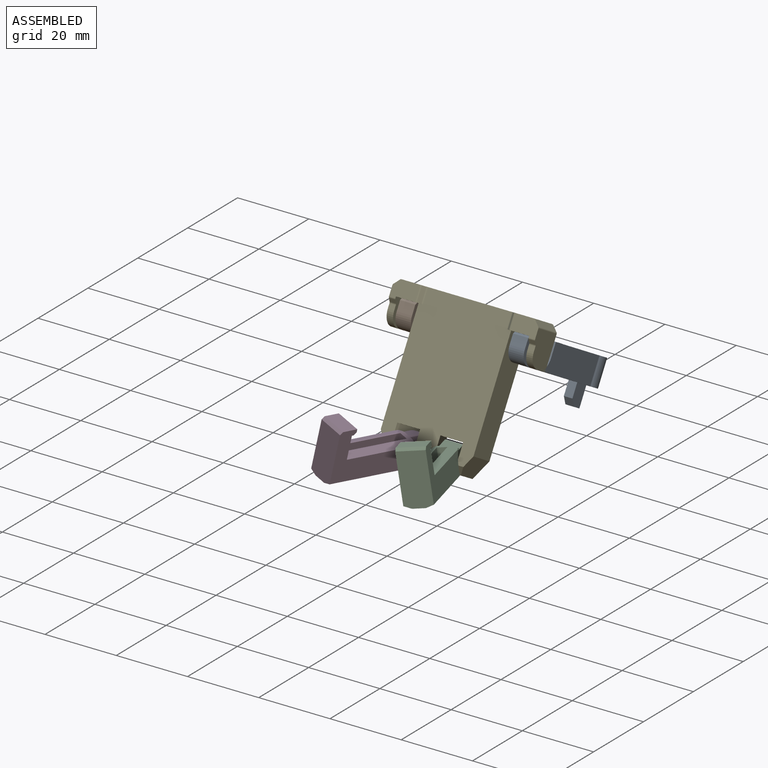
[diagram: assembled view]
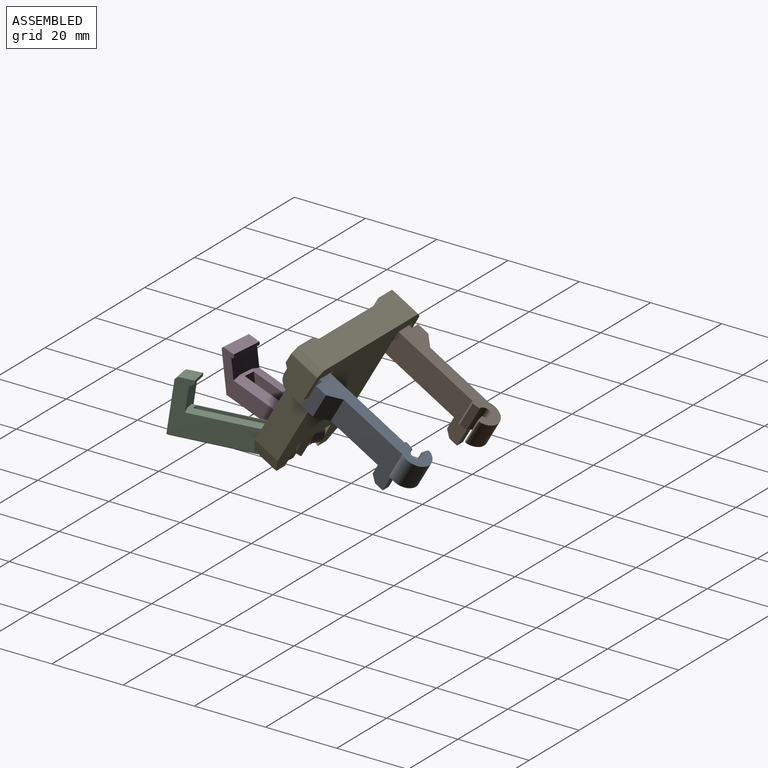
[diagram: assembled view, second angle]
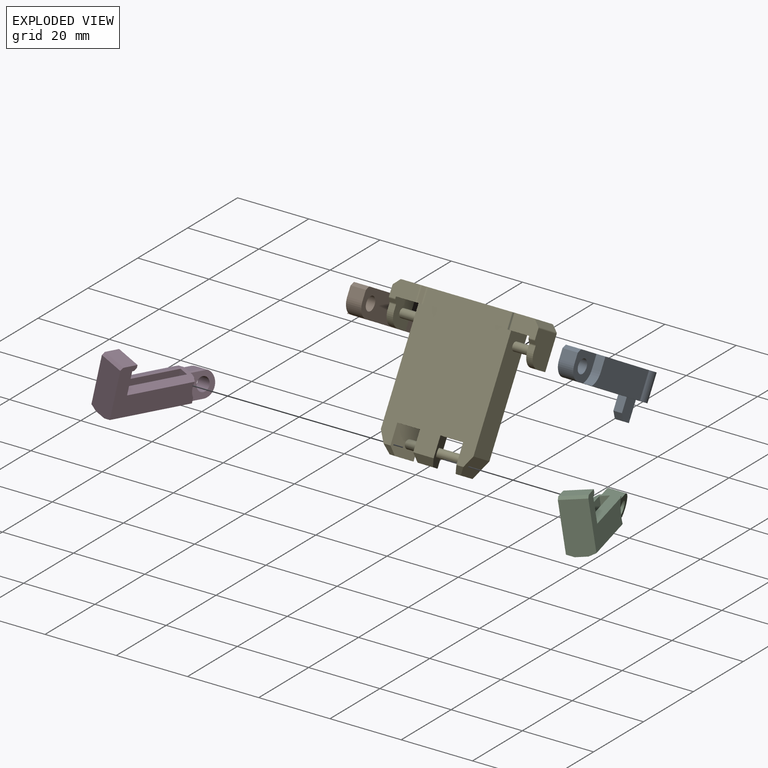
[diagram: exploded view]
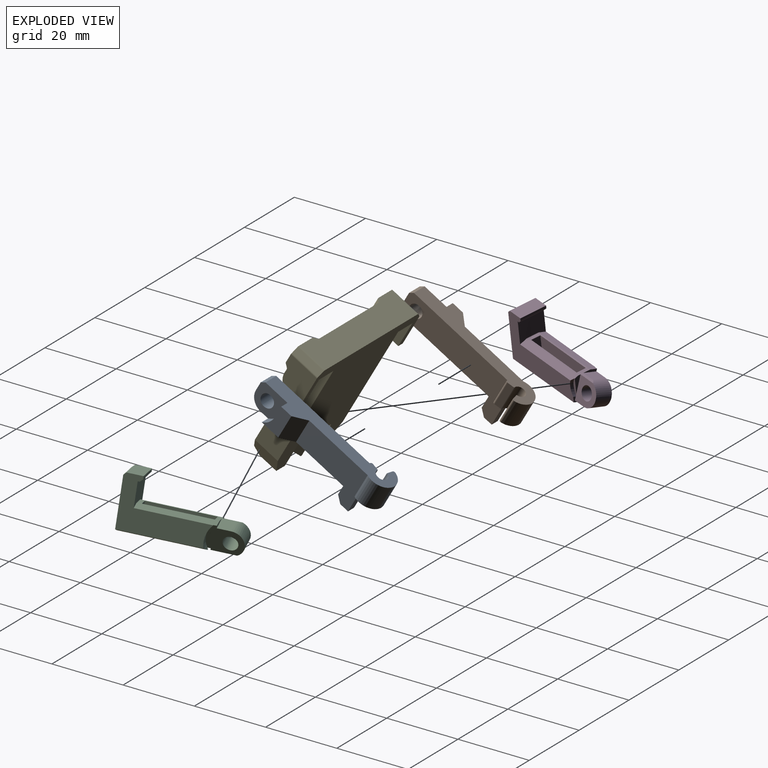
[diagram: exploded view, second angle]
ASSEMBLY  parts=5 mates=4
PART A: 26 faces, bbox 10.6x39.3x13 mm
  f0: plane 2.42x0.61mm, normal (0,0,1), area 1.1mm2, adj f8,f14,f15,f16,f24
  f1: plane 35.6x10.62mm, normal (0,0,1), area 145.8mm2, adj f3,f4,f8,f9,f11,f12,f13,f16
  f2: plane 38.31x10.62mm, normal (0,0,-1), area 163.6mm2, adj f3,f5,f8,f10,f11,f12,f13,f14
  f3: plane 8.1x7.4mm, normal (1,0,0), area 43mm2, adj f1,f2,f4,f5,f6,f7,f9,f10
  f4: cylinder r=3.7mm len=4.3mm, axis (1,0,0), area 25mm2, adj f1,f3,f6,f8
  f5: plane 4.3x0.99mm, normal (0,0.71,-0.71), area 6mm2, adj f2,f3,f6,f8
  f6: plane 4.3x2.71mm, normal (0,1,0), area 11.7mm2, adj f3,f4,f5,f8
  f7: cylinder r=1.9mm len=4.3mm, axis (1,0,0), area 51.3mm2, adj f3,f8
  f8: plane 33.7x13mm, normal (-1,0,0), area 238.9mm2, adj f0,f1,f2,f4,f5,f6,f7,f14
  f9: cylinder r=4.4mm len=3.7mm, axis (-1,0,0), area 11mm2, adj f1,f3,f10,f11
  f10: plane 3.7x2.5mm, normal (0,1,0), area 9.2mm2, adj f2,f3,f9,f11
  f11: plane 7.4x5.32mm, normal (1,0,0), area 26.6mm2, adj f1,f2,f9,f10,f13
  f12: plane 18.96x7.4mm, normal (1,0,0), area 140.3mm2, adj f1,f2,f13,f18
  f13: plane 7.4x3.2mm, normal (0.71,-0.71,0), area 33.5mm2, adj f1,f2,f11,f12
  f14: cylinder r=4mm len=7.4mm, axis (0,0,1), area 0.9mm2, adj f0,f2,f8,f24
  f15: plane 7.4x1.84mm, normal (-0.98,-0.17,0), area 13.8mm2, adj f0,f2,f16,f24
  f16: cylinder r=1.6mm len=7.4mm, axis (0,0,1), area 55.8mm2, adj f0,f1,f2,f15,f17
  f17: plane 7.4x1.84mm, normal (-0.17,0.98,0), area 13.8mm2, adj f1,f2,f16,f25
  f18: cylinder r=4mm len=7.8mm, axis (0,0,1), area 96.9mm2, adj f1,f2,f12,f25
  f19: plane 5.6x2.4mm, normal (0,-1,0), area 13.4mm2, adj f1,f8,f20,f22
  f20: plane 5.6x4.2mm, normal (1,0,0), area 22.1mm2, adj f1,f19,f21,f22,f23
  f21: plane 3.9x2.4mm, normal (0,1,0), area 9.4mm2, adj f1,f8,f20,f23
  f22: plane 2.5x2.4mm, normal (0,0,1), area 6mm2, adj f8,f19,f20,f23
  f23: plane 2.4x1.7mm, normal (0,0.71,0.71), area 5.8mm2, adj f8,f20,f21,f22
  f24: cylinder r=0.5mm len=7.4mm, axis (0,0,1), area 6.3mm2, adj f0,f2,f14,f15
  f25: cylinder r=0.5mm len=7.4mm, axis (0,0,1), area 6.3mm2, adj f1,f2,f17,f18
PART B: 26 faces, bbox 10.6x39.3x13 mm
  f0: plane 2.42x0.61mm, normal (0,0,1), area 1.1mm2, adj f8,f14,f15,f16,f24
  f1: plane 35.6x10.62mm, normal (0,0,1), area 145.8mm2, adj f3,f4,f8,f9,f11,f12,f13,f16
  f2: plane 38.31x10.62mm, normal (0,0,-1), area 163.6mm2, adj f3,f5,f8,f10,f11,f12,f13,f14
  f3: plane 8.1x7.4mm, normal (-1,0,0), area 43mm2, adj f1,f2,f4,f5,f6,f7,f9,f10
  f4: cylinder r=3.7mm len=4.3mm, axis (-1,0,0), area 25mm2, adj f1,f3,f6,f8
  f5: plane 4.3x0.99mm, normal (0,0.71,-0.71), area 6mm2, adj f2,f3,f6,f8
  f6: plane 4.3x2.71mm, normal (0,1,0), area 11.7mm2, adj f3,f4,f5,f8
  f7: cylinder r=1.9mm len=4.3mm, axis (-1,0,0), area 51.3mm2, adj f3,f8
  f8: plane 33.7x13mm, normal (1,0,0), area 238.9mm2, adj f0,f1,f2,f4,f5,f6,f7,f14
  f9: cylinder r=4.4mm len=3.7mm, axis (1,0,0), area 11mm2, adj f1,f3,f10,f11
  f10: plane 3.7x2.5mm, normal (0,1,0), area 9.2mm2, adj f2,f3,f9,f11
  f11: plane 7.4x5.32mm, normal (-1,0,0), area 26.6mm2, adj f1,f2,f9,f10,f13
  f12: plane 18.96x7.4mm, normal (-1,0,0), area 140.3mm2, adj f1,f2,f13,f18
  f13: plane 7.4x3.2mm, normal (-0.71,-0.71,0), area 33.5mm2, adj f1,f2,f11,f12
  f14: cylinder r=4mm len=7.4mm, axis (0,0,1), area 0.9mm2, adj f0,f2,f8,f24
  f15: plane 7.4x1.84mm, normal (0.98,-0.17,0), area 13.8mm2, adj f0,f2,f16,f24
  f16: cylinder r=1.6mm len=7.4mm, axis (0,0,1), area 55.8mm2, adj f0,f1,f2,f15,f17
  f17: plane 7.4x1.84mm, normal (0.17,0.98,0), area 13.8mm2, adj f1,f2,f16,f25
  f18: cylinder r=4mm len=7.8mm, axis (0,0,1), area 96.9mm2, adj f1,f2,f12,f25
  f19: plane 5.6x2.4mm, normal (0,-1,0), area 13.4mm2, adj f1,f8,f20,f22
  f20: plane 5.6x4.2mm, normal (-1,0,0), area 22.1mm2, adj f1,f19,f21,f22,f23
  f21: plane 3.9x2.4mm, normal (0,1,0), area 9.4mm2, adj f1,f8,f20,f23
  f22: plane 2.5x2.4mm, normal (0,0,1), area 6mm2, adj f8,f19,f20,f23
  f23: plane 2.4x1.7mm, normal (0,0.71,0.71), area 5.8mm2, adj f8,f20,f21,f22
  f24: cylinder r=0.5mm len=7.4mm, axis (0,0,1), area 6.3mm2, adj f0,f2,f14,f15
  f25: cylinder r=0.5mm len=7.4mm, axis (0,0,1), area 6.3mm2, adj f1,f2,f17,f18
PART C: 32 faces, bbox 10.7x30.6x15.4 mm
  f0: plane 24.8x3.4mm, normal (0,0,1), area 25.6mm2, adj f4,f6,f7,f9,f10,f17,f18,f21
  f1: plane 0.79x0.25mm, normal (0,-1,0), area 0.1mm2, adj f4,f14,f15
  f2: cylinder r=1.9mm len=5.62mm, axis (0.94,0,-0.34), area 54.9mm2, adj f4,f5
  f3: plane 28.86x3.4mm, normal (0,0,-1), area 40.3mm2, adj f5,f7,f8,f12,f16,f19,f20,f23
  f4: plane 6.95x6.29mm, normal (-0.94,0,0.34), area 30.7mm2, adj f0,f1,f2,f7,f8,f10,f12
  f5: plane 9.47x6.71mm, normal (0.94,0,-0.34), area 44.3mm2, adj f2,f3,f6,f7,f9,f16,f17,f29
  f6: plane 3.64x3.48mm, normal (0.34,0,0.94), area 13.5mm2, adj f0,f5,f7,f9
  f7: cylinder r=3.48mm len=8.11mm, axis (0.94,0,-0.34), area 47.9mm2, adj f0,f3,f4,f5,f6,f8
  f8: plane 3.48x3.06mm, normal (-0.34,0,-0.94), area 11.3mm2, adj f3,f4,f7,f12
  f9: plane 3.88x1.33mm, normal (0,1,0), area 2mm2, adj f0,f5,f6,f17
  f10: plane 4.66x1.7mm, normal (0,1,0), area 3.8mm2, adj f0,f4,f15,f18
  f11: plane 22.76x13.94mm, normal (1,0,0), area 157.8mm2, adj f16,f17,f19,f21,f22,f23,f24,f25
  f12: plane 3.41x2.29mm, normal (0,1,0), area 1.9mm2, adj f3,f4,f8,f13,f14,f20
  f13: plane 23.6x13.94mm, normal (-1,0,0), area 167.8mm2, adj f12,f14,f18,f20,f21,f22,f23,f24
  f14: cylinder r=4.27mm len=5.33mm, axis (0.94,0,-0.34), area 4.7mm2, adj f1,f12,f13,f15,f18
  f15: plane 5.06x0.8mm, normal (-1,0,0), area 2.9mm2, adj f1,f10,f14,f18
  f16: cylinder r=5.99mm len=7.4mm, axis (-0.94,0,0.34), area 8.6mm2, adj f3,f5,f11,f17,f19,f29
  f17: plane 20x2mm, normal (0.34,0,0.94), area 42.5mm2, adj f0,f5,f9,f11,f16,f21
  f18: plane 20.02x2.02mm, normal (-0.34,0,0.94), area 42.2mm2, adj f0,f10,f13,f14,f15,f21
  f19: plane 21.78x2mm, normal (0.34,0,-0.94), area 45.7mm2, adj f3,f11,f16,f23
  f20: plane 23.6x2mm, normal (-0.34,0,-0.94), area 50.2mm2, adj f3,f12,f13,f23
  f21: plane 7.4x6.5mm, normal (0,1,0), area 44.2mm2, adj f0,f11,f13,f17,f18,f24
  f22: plane 7.4x4.1mm, normal (0,0,1), area 30.3mm2, adj f11,f13,f25,f26
  f23: plane 13.97x7.4mm, normal (0,-1,0), area 101.9mm2, adj f3,f11,f13,f19,f20,f26
  f24: plane 7.4x0.5mm, normal (0,0,-1), area 3.7mm2, adj f11,f13,f21,f27
  f25: plane 7.4x0.8mm, normal (0,1,0), area 5.9mm2, adj f11,f13,f22,f27
  f26: plane 7.4x0.7mm, normal (0,-0.71,0.71), area 7.3mm2, adj f11,f13,f22,f23
  f27: plane 7.4x0.7mm, normal (0,0.71,-0.71), area 7.3mm2, adj f11,f13,f24,f25
  f28: plane 7.4x2.6mm, normal (0,1,0), area 19.2mm2, adj f0,f3,f29,f31
  f29: plane 17.6x7.4mm, normal (-1,0,0), area 129.9mm2, adj f0,f3,f5,f16,f28,f30
  f30: plane 7.4x2.6mm, normal (0,-1,0), area 19.2mm2, adj f0,f3,f5,f29,f31
  f31: plane 17.6x7.4mm, normal (1,0,0), area 130.2mm2, adj f0,f3,f28,f30
PART D: 32 faces, bbox 10.7x30.6x15.4 mm
  f0: plane 24.8x3.4mm, normal (0,0,1), area 25.6mm2, adj f4,f6,f7,f9,f10,f17,f18,f21
  f1: plane 0.79x0.25mm, normal (0,-1,0), area 0.1mm2, adj f4,f14,f15
  f2: cylinder r=1.9mm len=5.62mm, axis (-0.94,0,-0.34), area 54.9mm2, adj f4,f5
  f3: plane 28.86x3.4mm, normal (0,0,-1), area 40.3mm2, adj f5,f7,f8,f12,f16,f19,f20,f23
  f4: plane 6.95x6.29mm, normal (0.94,0,0.34), area 30.7mm2, adj f0,f1,f2,f7,f8,f10,f12
  f5: plane 9.47x6.71mm, normal (-0.94,0,-0.34), area 44.3mm2, adj f2,f3,f6,f7,f9,f16,f17,f29
  f6: plane 3.64x3.48mm, normal (-0.34,0,0.94), area 13.5mm2, adj f0,f5,f7,f9
  f7: cylinder r=3.48mm len=8.11mm, axis (-0.94,0,-0.34), area 47.9mm2, adj f0,f3,f4,f5,f6,f8
  f8: plane 3.48x3.06mm, normal (0.34,0,-0.94), area 11.3mm2, adj f3,f4,f7,f12
  f9: plane 3.88x1.33mm, normal (0,1,0), area 2mm2, adj f0,f5,f6,f17
  f10: plane 4.66x1.7mm, normal (0,1,0), area 3.8mm2, adj f0,f4,f15,f18
  f11: plane 22.76x13.94mm, normal (-1,0,0), area 157.8mm2, adj f16,f17,f19,f21,f22,f23,f24,f25
  f12: plane 3.41x2.29mm, normal (0,1,0), area 1.9mm2, adj f3,f4,f8,f13,f14,f20
  f13: plane 23.6x13.94mm, normal (1,0,0), area 167.8mm2, adj f12,f14,f18,f20,f21,f22,f23,f24
  f14: cylinder r=4.27mm len=5.33mm, axis (-0.94,0,-0.34), area 4.7mm2, adj f1,f12,f13,f15,f18
  f15: plane 5.06x0.8mm, normal (1,0,0), area 2.9mm2, adj f1,f10,f14,f18
  f16: cylinder r=5.99mm len=7.4mm, axis (0.94,0,0.34), area 8.6mm2, adj f3,f5,f11,f17,f19,f29
  f17: plane 20x2mm, normal (-0.34,0,0.94), area 42.5mm2, adj f0,f5,f9,f11,f16,f21
  f18: plane 20.02x2.02mm, normal (0.34,0,0.94), area 42.2mm2, adj f0,f10,f13,f14,f15,f21
  f19: plane 21.78x2mm, normal (-0.34,0,-0.94), area 45.7mm2, adj f3,f11,f16,f23
  f20: plane 23.6x2mm, normal (0.34,0,-0.94), area 50.2mm2, adj f3,f12,f13,f23
  f21: plane 7.4x6.5mm, normal (0,1,0), area 44.2mm2, adj f0,f11,f13,f17,f18,f24
  f22: plane 7.4x4.1mm, normal (0,0,1), area 30.3mm2, adj f11,f13,f25,f26
  f23: plane 13.97x7.4mm, normal (0,-1,0), area 101.9mm2, adj f3,f11,f13,f19,f20,f26
  f24: plane 7.4x0.5mm, normal (0,0,-1), area 3.7mm2, adj f11,f13,f21,f27
  f25: plane 7.4x0.8mm, normal (0,1,0), area 5.9mm2, adj f11,f13,f22,f27
  f26: plane 7.4x0.7mm, normal (0,-0.71,0.71), area 7.3mm2, adj f11,f13,f22,f23
  f27: plane 7.4x0.7mm, normal (0,0.71,-0.71), area 7.3mm2, adj f11,f13,f24,f25
  f28: plane 7.4x2.6mm, normal (0,1,0), area 19.2mm2, adj f0,f3,f29,f31
  f29: plane 17.6x7.4mm, normal (1,0,0), area 129.9mm2, adj f0,f3,f5,f16,f28,f30
  f30: plane 7.4x2.6mm, normal (0,-1,0), area 19.2mm2, adj f0,f3,f5,f29,f31
  f31: plane 17.6x7.4mm, normal (-1,0,0), area 130.2mm2, adj f0,f3,f28,f30
PART E: 69 faces, bbox 41x39.4x8.5 mm
  f0: plane 37.38x26mm, normal (0,0,1), area 886.3mm2, adj f7,f8,f10,f21,f24,f28,f29,f32
  f1: plane 5.4x3.44mm, normal (0,-1,0), area 13.3mm2, adj f4,f21,f29,f35
  f2: cylinder r=4.18mm len=6.46mm, axis (0.94,0,0.34), area 14.6mm2, adj f28,f29,f31,f33
  f3: plane 5.4x4.29mm, normal (0,-1,0), area 12.5mm2, adj f4,f28,f36,f61
  f4: plane 41x39.38mm, normal (0,0,-1), area 986.7mm2, adj f1,f3,f7,f8,f12,f13,f14,f17
  f5: cylinder r=1.2mm len=5.7mm, axis (-1,0,0), area 43mm2, adj f7,f13
  f6: plane 5.7x2.35mm, normal (0,-0.71,-0.71), area 19mm2, adj f7,f10,f11,f13
  f7: plane 32.58x7.4mm, normal (-1,0,0), area 230.5mm2, adj f0,f4,f5,f6,f10,f11,f12,f21
  f8: plane 37.19x8.45mm, normal (0,1,0), area 288mm2, adj f0,f4,f9,f20,f22,f24,f25,f42
  f9: plane 7.24x4.59mm, normal (0,0,1), area 29.4mm2, adj f8,f10,f13,f17,f19,f22,f23,f25
  f10: plane 6.91x1.76mm, normal (0,-1,0), area 10.5mm2, adj f0,f6,f7,f9,f13,f20,f22,f24
  f11: plane 5.7x0.64mm, normal (0,-1,0), area 3.6mm2, adj f6,f7,f12,f13
  f12: cylinder r=5.58mm len=5.7mm, axis (-1,0,0), area 23.1mm2, adj f4,f7,f11,f13
  f13: plane 9.28x8.45mm, normal (1,0,0), area 56.4mm2, adj f4,f5,f6,f9,f10,f11,f12,f14
  f14: plane 3.7x1.8mm, normal (0,-1,0), area 6.7mm2, adj f4,f13,f16,f17
  f15: plane 1.8x1.32mm, normal (0,0,1), area 2.4mm2, adj f13,f16,f17,f27
  f16: cylinder r=3.7mm len=3.7mm, axis (-1,0,0), area 10.5mm2, adj f13,f14,f15,f17
  f17: plane 9.18x8.45mm, normal (-1,0,0), area 68.6mm2, adj f4,f9,f14,f15,f16,f18,f23,f26
  f18: plane 1.8x0.76mm, normal (0,-0.71,0.71), area 1.9mm2, adj f13,f17,f23,f27
  f19: plane 8.45x1.41mm, normal (-0.71,0.71,0), area 16.8mm2, adj f4,f9,f25,f26
  f20: plane 4.15x0.76mm, normal (0.71,0,0.71), area 4.5mm2, adj f8,f10,f22,f24
  f21: plane 7.4x5mm, normal (-0.86,-0.51,0), area 40.8mm2, adj f0,f1,f4,f7,f35
  f22: cylinder r=0.5mm len=4.15mm, axis (0,1,0), area 1.6mm2, adj f8,f9,f10,f20
  f23: cylinder r=0.5mm len=1.8mm, axis (1,0,0), area 0.7mm2, adj f9,f13,f17,f18
  f24: cylinder r=0.5mm len=4.15mm, axis (0,1,0), area 1.6mm2, adj f0,f8,f10,f20
  f25: cylinder r=0.5mm len=8.45mm, axis (0,0,1), area 3.3mm2, adj f4,f8,f9,f19
  f26: cylinder r=0.5mm len=8.45mm, axis (0,0,1), area 3.3mm2, adj f4,f9,f17,f19
  f27: cylinder r=0.5mm len=1.8mm, axis (1,0,0), area 0.7mm2, adj f13,f15,f17,f18
  f28: plane 7.65x7.4mm, normal (-0.94,0,-0.34), area 52.6mm2, adj f0,f2,f3,f4,f30,f31,f32,f33
  f29: plane 7.65x7.4mm, normal (0.94,0,0.34), area 52.6mm2, adj f0,f1,f2,f4,f30,f31,f32,f33
  f30: cylinder r=1.2mm len=6.46mm, axis (0.94,0,0.34), area 45.2mm2, adj f28,f29
  f31: plane 5.64x2.05mm, normal (-0.34,0,0.94), area 0.1mm2, adj f2,f28,f29,f32
  f32: plane 6.99x3.71mm, normal (0,-1,0), area 17.1mm2, adj f0,f28,f29,f31
  f33: plane 5.64x2.05mm, normal (0.34,0,-0.94), area 0.1mm2, adj f2,f28,f29,f34
  f34: plane 6.91x3.49mm, normal (0,-1,0), area 15.7mm2, adj f4,f28,f29,f33
  f35: plane 2.67x2mm, normal (0,-0.71,0.71), area 4.8mm2, adj f0,f1,f21,f29
  f36: plane 5.74x2mm, normal (0,-0.71,0.71), area 14.2mm2, adj f0,f3,f28,f61
  f37: plane 5.4x3.44mm, normal (0,-1,0), area 13.3mm2, adj f4,f54,f62,f68
  f38: cylinder r=4.18mm len=6.46mm, axis (-0.94,0,0.34), area 14.6mm2, adj f61,f62,f64,f66
  f39: cylinder r=1.2mm len=5.7mm, axis (1,0,0), area 43mm2, adj f41,f46
  f40: plane 5.7x2.35mm, normal (0,-0.71,-0.71), area 19mm2, adj f41,f43,f44,f46
  f41: plane 32.58x7.4mm, normal (1,0,0), area 230.5mm2, adj f0,f4,f39,f40,f43,f44,f45,f54
  f42: plane 7.24x4.59mm, normal (0,0,1), area 29.4mm2, adj f8,f43,f46,f50,f52,f55,f56,f58
  f43: plane 6.91x1.76mm, normal (0,-1,0), area 10.5mm2, adj f0,f40,f41,f42,f46,f53,f55,f57
  f44: plane 5.7x0.64mm, normal (0,-1,0), area 3.6mm2, adj f40,f41,f45,f46
  f45: cylinder r=5.58mm len=5.7mm, axis (1,0,0), area 23.1mm2, adj f4,f41,f44,f46
  f46: plane 9.28x8.45mm, normal (-1,0,0), area 56.4mm2, adj f4,f39,f40,f42,f43,f44,f45,f47
  f47: plane 3.7x1.8mm, normal (0,-1,0), area 6.7mm2, adj f4,f46,f49,f50
  f48: plane 1.8x1.32mm, normal (0,0,1), area 2.4mm2, adj f46,f49,f50,f60
  f49: cylinder r=3.7mm len=3.7mm, axis (1,0,0), area 10.5mm2, adj f46,f47,f48,f50
  f50: plane 9.18x8.45mm, normal (1,0,0), area 68.6mm2, adj f4,f42,f47,f48,f49,f51,f56,f59
  f51: plane 1.8x0.76mm, normal (0,-0.71,0.71), area 1.9mm2, adj f46,f50,f56,f60
  f52: plane 8.45x1.41mm, normal (0.71,0.71,0), area 16.8mm2, adj f4,f42,f58,f59
  f53: plane 4.15x0.76mm, normal (-0.71,0,0.71), area 4.5mm2, adj f8,f43,f55,f57
  f54: plane 7.4x5mm, normal (0.86,-0.51,0), area 40.8mm2, adj f0,f4,f37,f41,f68
  f55: cylinder r=0.5mm len=4.15mm, axis (0,1,0), area 1.6mm2, adj f8,f42,f43,f53
  f56: cylinder r=0.5mm len=1.8mm, axis (-1,0,0), area 0.7mm2, adj f42,f46,f50,f51
  f57: cylinder r=0.5mm len=4.15mm, axis (0,1,0), area 1.6mm2, adj f0,f8,f43,f53
  f58: cylinder r=0.5mm len=8.45mm, axis (0,0,1), area 3.3mm2, adj f4,f8,f42,f52
  f59: cylinder r=0.5mm len=8.45mm, axis (0,0,1), area 3.3mm2, adj f4,f42,f50,f52
  f60: cylinder r=0.5mm len=1.8mm, axis (-1,0,0), area 0.7mm2, adj f46,f48,f50,f51
  f61: plane 7.65x7.4mm, normal (0.94,0,-0.34), area 52.6mm2, adj f0,f3,f4,f36,f38,f63,f64,f65
  f62: plane 7.65x7.4mm, normal (-0.94,0,0.34), area 52.6mm2, adj f0,f4,f37,f38,f63,f64,f65,f66
  f63: cylinder r=1.2mm len=6.46mm, axis (-0.94,0,0.34), area 45.2mm2, adj f61,f62
  f64: plane 5.64x2.05mm, normal (0.34,0,0.94), area 0.1mm2, adj f38,f61,f62,f65
  f65: plane 6.99x3.71mm, normal (0,-1,0), area 17.1mm2, adj f0,f61,f62,f64
  f66: plane 5.64x2.05mm, normal (-0.34,0,-0.94), area 0.1mm2, adj f38,f61,f62,f67
  f67: plane 6.91x3.49mm, normal (0,-1,0), area 15.7mm2, adj f4,f61,f62,f66
  f68: plane 2.67x2mm, normal (0,-0.71,0.71), area 4.8mm2, adj f0,f37,f54,f62
PLACE A rot(axis=(1,0,0),150deg) t=(18.7,12.8,29.56)mm
PLACE B rot(axis=(1,0,0),150deg) t=(18.7,12.8,29.56)mm
PLACE C rot(axis=(-0.18,-0.49,0.85),22.2deg) t=(8.68,30.16,4.58)mm
PLACE D rot(axis=(-0.18,0.49,-0.85),22.2deg) t=(26.04,17.89,-1.95)mm
PLACE E rot(axis=(1,0,0),60deg) t=(18.7,12.8,29.56)mm fixed
MATE revolute E.f5 <-> A.f7  axis (-1,0,0) through (15.85,12.8,29.56)mm
MATE revolute C.f14 <-> E.f38  axis (0.94,0.3,-0.17) through (4.68,-1.37,4.81)mm
MATE revolute D.f14 <-> E.f2  axis (0.94,-0.3,0.17) through (-4.68,-1.37,4.81)mm
MATE revolute E.f5 <-> B.f7  axis (-1,0,0) through (-15.85,12.8,29.56)mm
